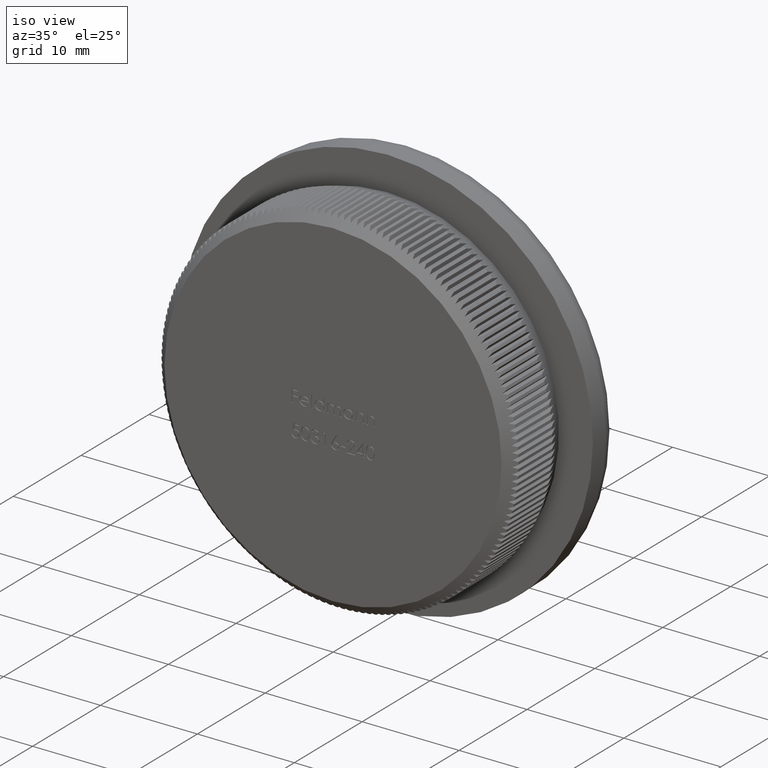
[diagram: clean part render]
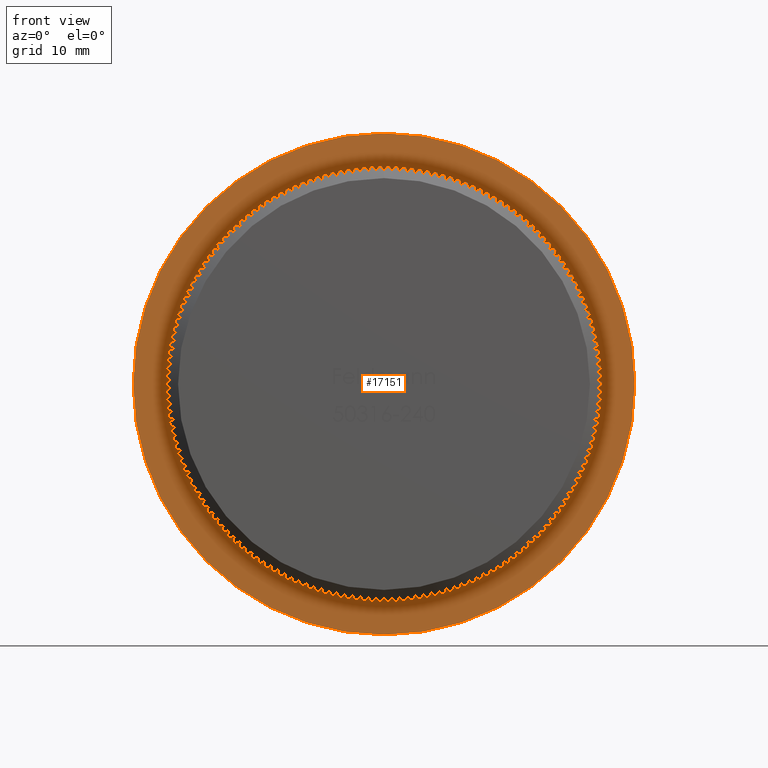
[diagram: tour spotlight — one face highlighted and labeled with its STEP entity id]
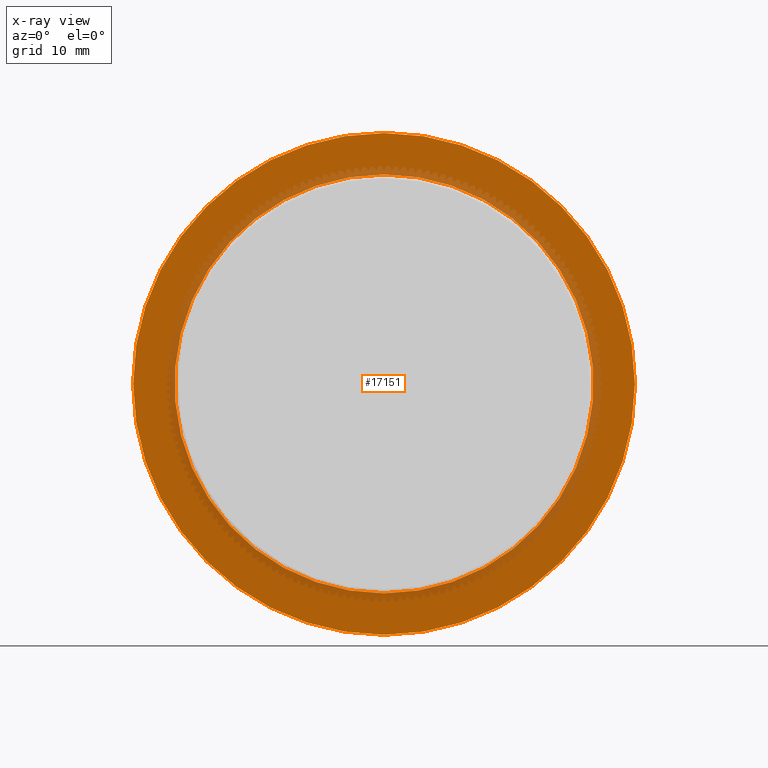
[diagram: x-ray of the same camera — body ghosted, this tour face saturated]
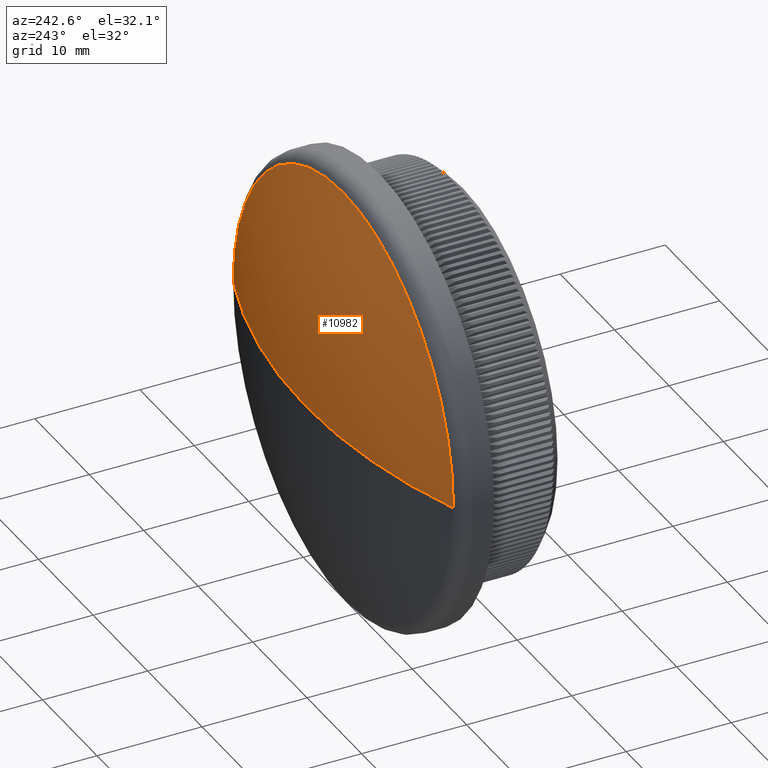
[diagram: tour spotlight — one face highlighted and labeled with its STEP entity id]
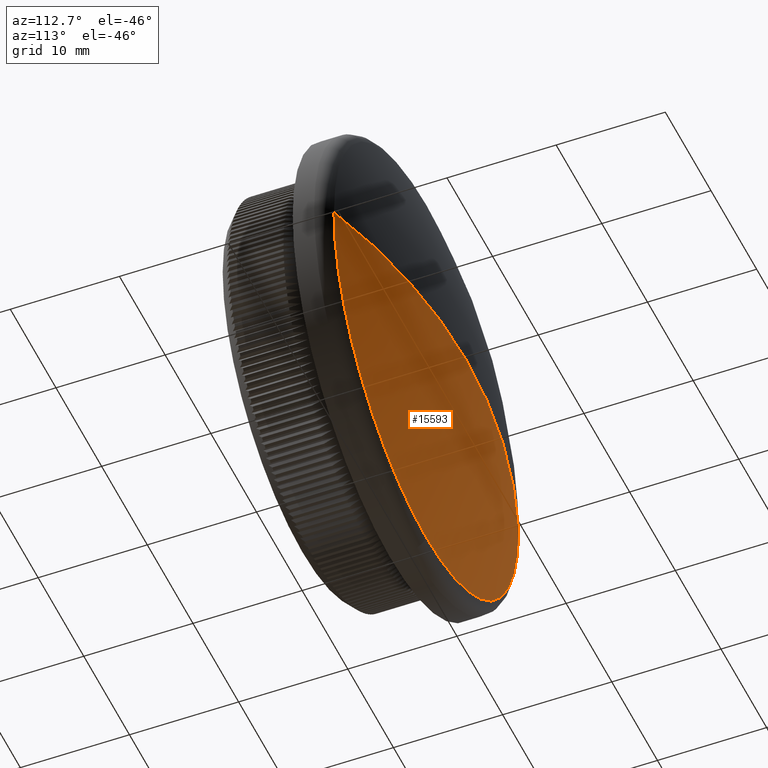
[diagram: tour spotlight — one face highlighted and labeled with its STEP entity id]
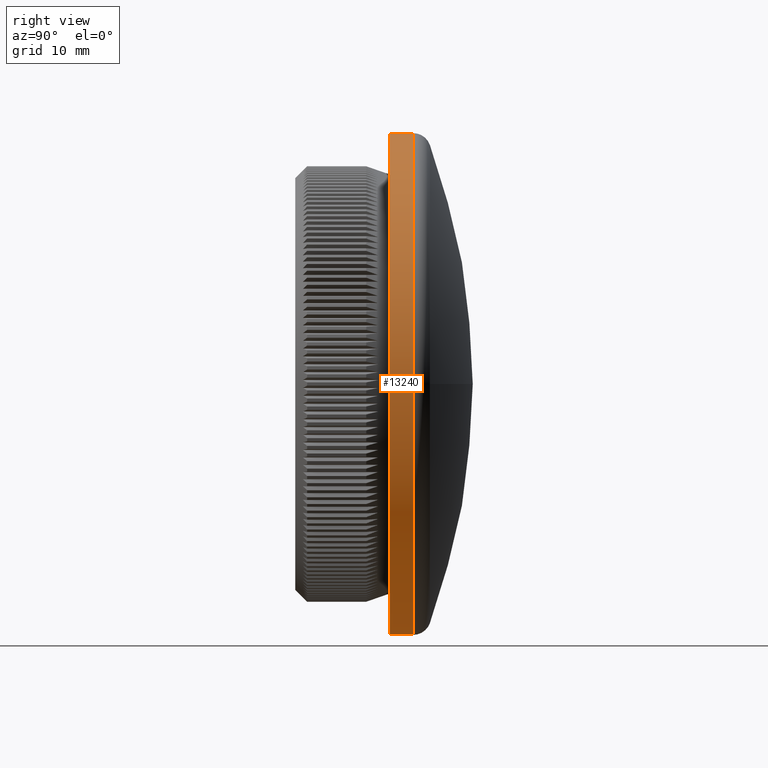
[diagram: tour spotlight — one face highlighted and labeled with its STEP entity id]
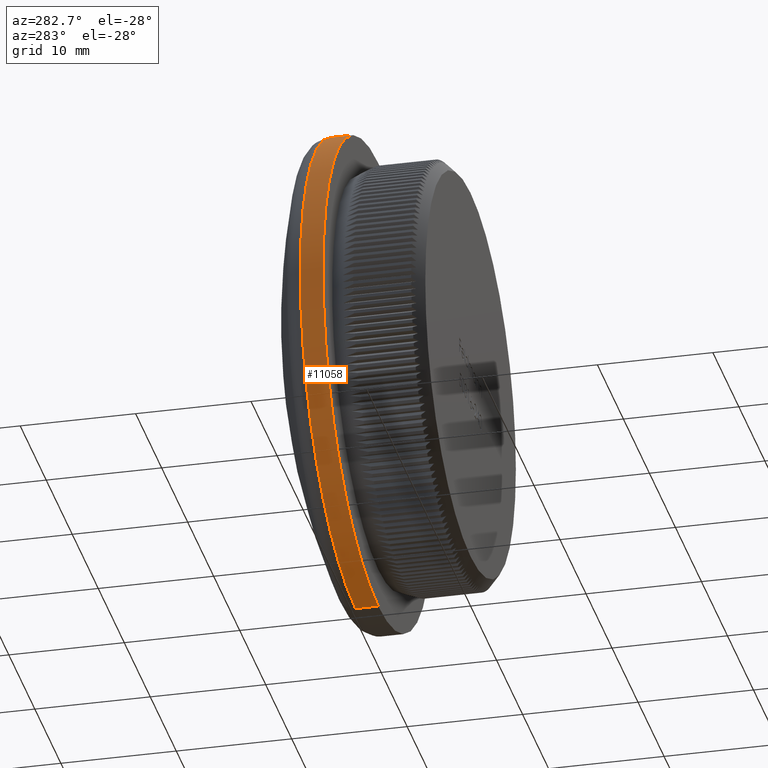
[diagram: tour spotlight — one face highlighted and labeled with its STEP entity id]
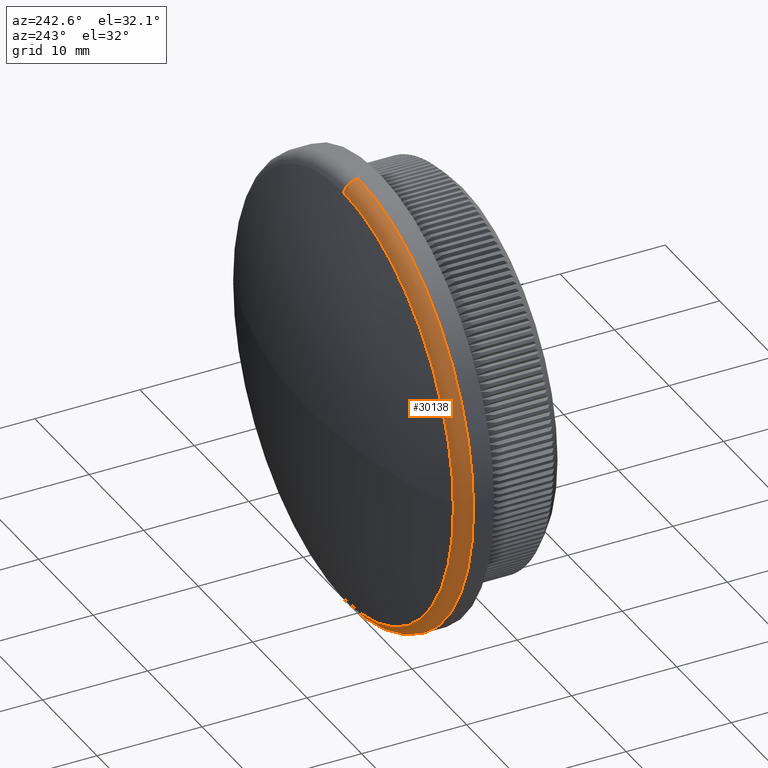
[diagram: tour spotlight — one face highlighted and labeled with its STEP entity id]
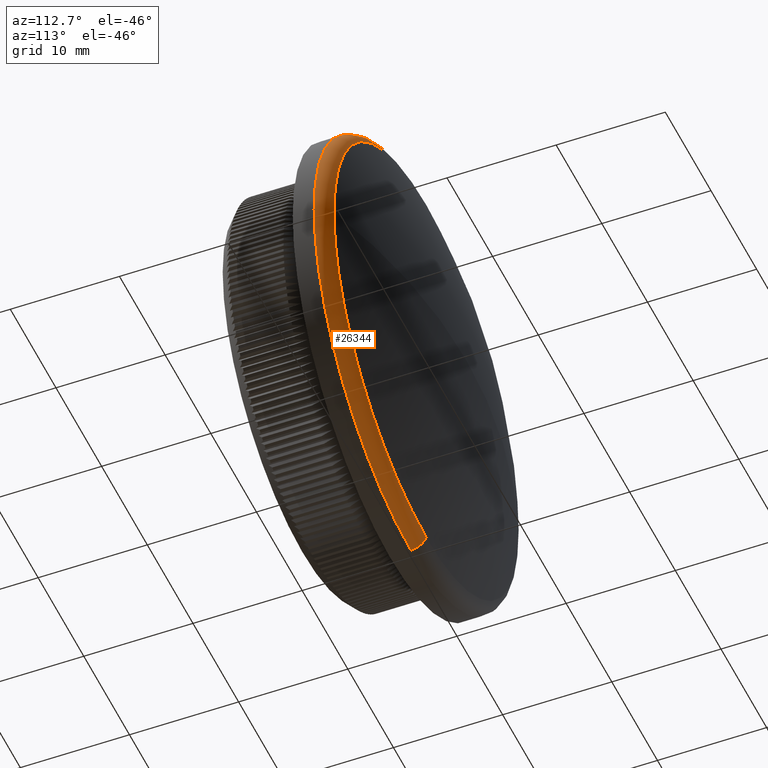
[diagram: tour spotlight — one face highlighted and labeled with its STEP entity id]
A machine part: a face-by-face anatomy tour. The part has 744 B-rep faces; the first image is the clean iso view, then the 7 largest visible faces are spotlighted one at a time (largest first), each with its STEP entity span.

Face 1 — front view, entity #17151. An x-ray twin of the same camera follows (body ghosted, this face saturated) — the face is partly hidden behind the body. In plain terms, the highlighted planar face has unit normal (0, -1, -0).
Definition (entity closure, byte-faithful):
#558 = CARTESIAN_POINT ( 'NONE',  ( 0.0000000000000000000, 8.000000000000000000, 0.0000000000000000000 ) ) ;
#905 = AXIS2_PLACEMENT_3D ( 'NONE', #12239, #9750, #3117 ) ;
#1106 = CARTESIAN_POINT ( 'NONE',  ( 0.0000000000000000000, 8.000000000000000000, 0.0000000000000000000 ) ) ;
#2089 = AXIS2_PLACEMENT_3D ( 'NONE', #558, #21553, #5031 ) ;
#2647 = DIRECTION ( 'NONE',  ( 0.0000000000000000000, -1.000000000000000000, -0.0000000000000000000 ) ) ;
#3117 = DIRECTION ( 'NONE',  ( 0.0000000000000000000, 0.0000000000000000000, -1.000000000000000000 ) ) ;
#3507 = CARTESIAN_POINT ( 'NONE',  ( 0.0000000000000000000, 8.000000000000000000, 0.0000000000000000000 ) ) ;
#4274 = EDGE_CURVE ( 'NONE', #9390, #13016, #30351, .T. ) ;
#4660 = CIRCLE ( 'NONE', #18461, 17.69999999999999900 ) ;
#5031 = DIRECTION ( 'NONE',  ( 0.0000000000000000000, 0.0000000000000000000, -1.000000000000000000 ) ) ;
#6095 = CARTESIAN_POINT ( 'NONE',  ( 0.0000000000000000000, 8.000000000000000000, -21.19999999999999900 ) ) ;
#7099 = EDGE_CURVE ( 'NONE', #13016, #9390, #7699, .T. ) ;
#7699 = CIRCLE ( 'NONE', #15462, 21.19999999999999900 ) ;
#7701 = CARTESIAN_POINT ( 'NONE',  ( 17.69999999999999900, 8.000000000000000000, 0.0000000000000000000 ) ) ;
#8264 = DIRECTION ( 'NONE',  ( 0.0000000000000000000, 0.0000000000000000000, -1.000000000000000000 ) ) ;
#8361 = DIRECTION ( 'NONE',  ( -0.0000000000000000000, -1.000000000000000000, -0.0000000000000000000 ) ) ;
#8468 = DIRECTION ( 'NONE',  ( -0.0000000000000000000, -1.000000000000000000, -0.0000000000000000000 ) ) ;
#9390 = VERTEX_POINT ( 'NONE', #28071 ) ;
#9750 = DIRECTION ( 'NONE',  ( -0.0000000000000000000, -1.000000000000000000, -0.0000000000000000000 ) ) ;
#12239 = CARTESIAN_POINT ( 'NONE',  ( 0.0000000000000000000, 8.000000000000000000, 0.0000000000000000000 ) ) ;
#12541 = CIRCLE ( 'NONE', #2089, 17.69999999999999900 ) ;
#13016 = VERTEX_POINT ( 'NONE', #6095 ) ;
#14466 = PLANE ( 'NONE',  #27305 ) ;
#14762 = ORIENTED_EDGE ( 'NONE', *, *, #21717, .F. ) ;
#15462 = AXIS2_PLACEMENT_3D ( 'NONE', #3507, #8361, #29297 ) ;
#16268 = EDGE_LOOP ( 'NONE', ( #18952, #25225 ) ) ;
#16997 = FACE_OUTER_BOUND ( 'NONE', #16268, .T. ) ;
#17151 = ADVANCED_FACE ( 'NONE', ( #16997, #25542 ), #14466, .T. ) ;
#17870 = ORIENTED_EDGE ( 'NONE', *, *, #27115, .F. ) ;
#18461 = AXIS2_PLACEMENT_3D ( 'NONE', #1106, #8468, #8264 ) ;
#18952 = ORIENTED_EDGE ( 'NONE', *, *, #7099, .T. ) ;
#21494 = CARTESIAN_POINT ( 'NONE',  ( 0.0000000000000000000, 8.000000000000000000, -17.69999999999999900 ) ) ;
#21553 = DIRECTION ( 'NONE',  ( -0.0000000000000000000, -1.000000000000000000, -0.0000000000000000000 ) ) ;
#21642 = DIRECTION ( 'NONE',  ( 0.0000000000000000000, 0.0000000000000000000, -1.000000000000000000 ) ) ;
#21717 = EDGE_CURVE ( 'NONE', #24457, #23365, #4660, .T. ) ;
#23365 = VERTEX_POINT ( 'NONE', #27165 ) ;
#24457 = VERTEX_POINT ( 'NONE', #21494 ) ;
#25225 = ORIENTED_EDGE ( 'NONE', *, *, #4274, .T. ) ;
#25542 = FACE_BOUND ( 'NONE', #30207, .T. ) ;
#27115 = EDGE_CURVE ( 'NONE', #23365, #24457, #12541, .T. ) ;
#27165 = CARTESIAN_POINT ( 'NONE',  ( 2.210487472460972900E-015, 8.000000000000000000, 17.69999999999999900 ) ) ;
#27305 = AXIS2_PLACEMENT_3D ( 'NONE', #7701, #2647, #21642 ) ;
#28071 = CARTESIAN_POINT ( 'NONE',  ( 2.596251214192388800E-015, 8.000000000000000000, 21.19999999999999900 ) ) ;
#29297 = DIRECTION ( 'NONE',  ( 0.0000000000000000000, 0.0000000000000000000, -1.000000000000000000 ) ) ;
#30207 = EDGE_LOOP ( 'NONE', ( #14762, #17870 ) ) ;
#30351 = CIRCLE ( 'NONE', #905, 21.19999999999999900 ) ;

Face 2 — auxiliary view, entity #10982. In plain terms, the highlighted spherical surface has radius 58.18 mm.
Definition (entity closure, byte-faithful):
#381 = AXIS2_PLACEMENT_3D ( 'NONE', #5385, #17196, #14945 ) ;
#948 = AXIS2_PLACEMENT_3D ( 'NONE', #9721, #21790, #7540 ) ;
#1131 = EDGE_LOOP ( 'NONE', ( #5878, #12476, #12214, #26637 ) ) ;
#1823 = AXIS2_PLACEMENT_3D ( 'NONE', #20010, #10534, #7856 ) ;
#3346 = CARTESIAN_POINT ( 'NONE',  ( -20.22134791813689200, 11.37281375303809700, 2.476400900239134100E-015 ) ) ;
#4391 = CIRCLE ( 'NONE', #20800, 20.22134791813691000 ) ;
#5343 = SPHERICAL_SURFACE ( 'NONE', #1823, 58.18000000000007100 ) ;
#5385 = CARTESIAN_POINT ( 'NONE',  ( 0.0000000000000000000, -43.18000000000007100, 0.0000000000000000000 ) ) ;
#5878 = ORIENTED_EDGE ( 'NONE', *, *, #8126, .F. ) ;
#7540 = DIRECTION ( 'NONE',  ( 1.000000000000000000, 0.0000000000000000000, -1.224646799147353500E-016 ) ) ;
#7856 = DIRECTION ( 'NONE',  ( 1.000000000000000000, 0.0000000000000000000, 0.0000000000000000000 ) ) ;
#8126 = EDGE_CURVE ( 'NONE', #27635, #29362, #18423, .T. ) ;
#8365 = DIRECTION ( 'NONE',  ( 0.0000000000000000000, 1.000000000000000000, 0.0000000000000000000 ) ) ;
#8401 = EDGE_CURVE ( 'NONE', #27635, #23409, #9874, .T. ) ;
#8773 = CARTESIAN_POINT ( 'NONE',  ( 0.0000000000000000000, 11.37281375303810000, 0.0000000000000000000 ) ) ;
#9721 = CARTESIAN_POINT ( 'NONE',  ( 0.0000000000000000000, -43.18000000000007100, 0.0000000000000000000 ) ) ;
#9874 = CIRCLE ( 'NONE', #948, 58.18000000000007100 ) ;
#10534 = DIRECTION ( 'NONE',  ( 0.0000000000000000000, 0.0000000000000000000, 1.000000000000000000 ) ) ;
#10982 = ADVANCED_FACE ( 'NONE', ( #24295 ), #5343, .T. ) ;
#12214 = ORIENTED_EDGE ( 'NONE', *, *, #24641, .T. ) ;
#12476 = ORIENTED_EDGE ( 'NONE', *, *, #8401, .T. ) ;
#12652 = CARTESIAN_POINT ( 'NONE',  ( 2.536326057215763400E-015, 11.37281375303810000, 20.22134791813691000 ) ) ;
#12666 = CARTESIAN_POINT ( 'NONE',  ( 0.0000000000000000000, 11.37281375303810000, 0.0000000000000000000 ) ) ;
#14504 = CIRCLE ( 'NONE', #14521, 20.22134791813691000 ) ;
#14521 = AXIS2_PLACEMENT_3D ( 'NONE', #8773, #8365, #20628 ) ;
#14548 = CARTESIAN_POINT ( 'NONE',  ( 3.562497538719655300E-015, 15.00000000000000000, 0.0000000000000000000 ) ) ;
#14945 = DIRECTION ( 'NONE',  ( -1.000000000000000000, 0.0000000000000000000, 0.0000000000000000000 ) ) ;
#17196 = DIRECTION ( 'NONE',  ( 0.0000000000000000000, 0.0000000000000000000, -1.000000000000000000 ) ) ;
#18423 = CIRCLE ( 'NONE', #381, 58.18000000000007100 ) ;
#18557 = EDGE_CURVE ( 'NONE', #19182, #29362, #4391, .T. ) ;
#19182 = VERTEX_POINT ( 'NONE', #12652 ) ;
#19940 = DIRECTION ( 'NONE',  ( 0.0000000000000000000, 1.000000000000000000, 0.0000000000000000000 ) ) ;
#20010 = CARTESIAN_POINT ( 'NONE',  ( 0.0000000000000000000, -43.18000000000007100, 0.0000000000000000000 ) ) ;
#20628 = DIRECTION ( 'NONE',  ( 0.0000000000000000000, 0.0000000000000000000, -1.000000000000000000 ) ) ;
#20800 = AXIS2_PLACEMENT_3D ( 'NONE', #12666, #19940, #26956 ) ;
#21790 = DIRECTION ( 'NONE',  ( 1.224646799147353200E-016, -0.0000000000000000000, 1.000000000000000000 ) ) ;
#23409 = VERTEX_POINT ( 'NONE', #3346 ) ;
#23647 = CARTESIAN_POINT ( 'NONE',  ( 20.22134791813689200, 11.37281375303809700, 0.0000000000000000000 ) ) ;
#24295 = FACE_OUTER_BOUND ( 'NONE', #1131, .T. ) ;
#24641 = EDGE_CURVE ( 'NONE', #23409, #19182, #14504, .T. ) ;
#26637 = ORIENTED_EDGE ( 'NONE', *, *, #18557, .T. ) ;
#26956 = DIRECTION ( 'NONE',  ( 0.0000000000000000000, 0.0000000000000000000, -1.000000000000000000 ) ) ;
#27635 = VERTEX_POINT ( 'NONE', #14548 ) ;
#29362 = VERTEX_POINT ( 'NONE', #23647 ) ;

Face 3 — auxiliary view, entity #15593. In plain terms, the highlighted spherical surface has radius 58.18 mm.
Definition (entity closure, byte-faithful):
#13 = CIRCLE ( 'NONE', #14709, 20.22134791813691000 ) ;
#381 = AXIS2_PLACEMENT_3D ( 'NONE', #5385, #17196, #14945 ) ;
#948 = AXIS2_PLACEMENT_3D ( 'NONE', #9721, #21790, #7540 ) ;
#3346 = CARTESIAN_POINT ( 'NONE',  ( -20.22134791813689200, 11.37281375303809700, 2.476400900239134100E-015 ) ) ;
#5070 = EDGE_LOOP ( 'NONE', ( #21856, #23463, #28868, #25662 ) ) ;
#5385 = CARTESIAN_POINT ( 'NONE',  ( 0.0000000000000000000, -43.18000000000007100, 0.0000000000000000000 ) ) ;
#7540 = DIRECTION ( 'NONE',  ( 1.000000000000000000, 0.0000000000000000000, -1.224646799147353500E-016 ) ) ;
#8126 = EDGE_CURVE ( 'NONE', #27635, #29362, #18423, .T. ) ;
#8401 = EDGE_CURVE ( 'NONE', #27635, #23409, #9874, .T. ) ;
#8756 = DIRECTION ( 'NONE',  ( 0.0000000000000000000, 1.000000000000000000, 0.0000000000000000000 ) ) ;
#9721 = CARTESIAN_POINT ( 'NONE',  ( 0.0000000000000000000, -43.18000000000007100, 0.0000000000000000000 ) ) ;
#9874 = CIRCLE ( 'NONE', #948, 58.18000000000007100 ) ;
#13482 = DIRECTION ( 'NONE',  ( 0.0000000000000000000, 1.000000000000000000, 0.0000000000000000000 ) ) ;
#14548 = CARTESIAN_POINT ( 'NONE',  ( 3.562497538719655300E-015, 15.00000000000000000, 0.0000000000000000000 ) ) ;
#14709 = AXIS2_PLACEMENT_3D ( 'NONE', #27682, #13482, #25619 ) ;
#14945 = DIRECTION ( 'NONE',  ( -1.000000000000000000, 0.0000000000000000000, 0.0000000000000000000 ) ) ;
#15593 = ADVANCED_FACE ( 'NONE', ( #25246 ), #18957, .T. ) ;
#15845 = CIRCLE ( 'NONE', #28530, 20.22134791813691000 ) ;
#17196 = DIRECTION ( 'NONE',  ( 0.0000000000000000000, 0.0000000000000000000, -1.000000000000000000 ) ) ;
#18423 = CIRCLE ( 'NONE', #381, 58.18000000000007100 ) ;
#18957 = SPHERICAL_SURFACE ( 'NONE', #20562, 58.18000000000007100 ) ;
#19785 = EDGE_CURVE ( 'NONE', #29362, #26987, #15845, .T. ) ;
#20562 = AXIS2_PLACEMENT_3D ( 'NONE', #30406, #27614, #25248 ) ;
#21790 = DIRECTION ( 'NONE',  ( 1.224646799147353200E-016, -0.0000000000000000000, 1.000000000000000000 ) ) ;
#21856 = ORIENTED_EDGE ( 'NONE', *, *, #8401, .F. ) ;
#23205 = CARTESIAN_POINT ( 'NONE',  ( 0.0000000000000000000, 11.37281375303810000, 0.0000000000000000000 ) ) ;
#23409 = VERTEX_POINT ( 'NONE', #3346 ) ;
#23463 = ORIENTED_EDGE ( 'NONE', *, *, #8126, .T. ) ;
#23647 = CARTESIAN_POINT ( 'NONE',  ( 20.22134791813689200, 11.37281375303809700, 0.0000000000000000000 ) ) ;
#24294 = EDGE_CURVE ( 'NONE', #26987, #23409, #13, .T. ) ;
#25246 = FACE_OUTER_BOUND ( 'NONE', #5070, .T. ) ;
#25248 = DIRECTION ( 'NONE',  ( 1.000000000000000000, 0.0000000000000000000, 0.0000000000000000000 ) ) ;
#25619 = DIRECTION ( 'NONE',  ( 0.0000000000000000000, 0.0000000000000000000, -1.000000000000000000 ) ) ;
#25662 = ORIENTED_EDGE ( 'NONE', *, *, #24294, .T. ) ;
#26987 = VERTEX_POINT ( 'NONE', #27845 ) ;
#27614 = DIRECTION ( 'NONE',  ( 0.0000000000000000000, 0.0000000000000000000, 1.000000000000000000 ) ) ;
#27635 = VERTEX_POINT ( 'NONE', #14548 ) ;
#27682 = CARTESIAN_POINT ( 'NONE',  ( 0.0000000000000000000, 11.37281375303810000, 0.0000000000000000000 ) ) ;
#27845 = CARTESIAN_POINT ( 'NONE',  ( 0.0000000000000000000, 11.37281375303810000, -20.22134791813691000 ) ) ;
#28530 = AXIS2_PLACEMENT_3D ( 'NONE', #23205, #8756, #30214 ) ;
#28868 = ORIENTED_EDGE ( 'NONE', *, *, #19785, .T. ) ;
#29362 = VERTEX_POINT ( 'NONE', #23647 ) ;
#30214 = DIRECTION ( 'NONE',  ( 0.0000000000000000000, 0.0000000000000000000, -1.000000000000000000 ) ) ;
#30406 = CARTESIAN_POINT ( 'NONE',  ( 0.0000000000000000000, -43.18000000000007100, 0.0000000000000000000 ) ) ;

Face 4 — right view, entity #13240. In plain terms, the highlighted cylindrical surface (partial cylindrical patch) has radius 21.2 mm, axis along (-0, -1, -0).
Definition (entity closure, byte-faithful):
#60 = DIRECTION ( 'NONE',  ( 0.0000000000000000000, 0.0000000000000000000, -1.000000000000000000 ) ) ;
#851 = CARTESIAN_POINT ( 'NONE',  ( 0.0000000000000000000, 9.966330070852492900, 0.0000000000000000000 ) ) ;
#910 = EDGE_LOOP ( 'NONE', ( #8336, #16144, #12702, #25488 ) ) ;
#1846 = LINE ( 'NONE', #23591, #9647 ) ;
#2057 = CARTESIAN_POINT ( 'NONE',  ( 2.596251214192389200E-015, 9.966330070852492900, 21.20000000000000300 ) ) ;
#2978 = EDGE_CURVE ( 'NONE', #16349, #13016, #1846, .T. ) ;
#3507 = CARTESIAN_POINT ( 'NONE',  ( 0.0000000000000000000, 8.000000000000000000, 0.0000000000000000000 ) ) ;
#4960 = EDGE_CURVE ( 'NONE', #16349, #19515, #13705, .T. ) ;
#6042 = DIRECTION ( 'NONE',  ( -0.0000000000000000000, -1.000000000000000000, -0.0000000000000000000 ) ) ;
#6095 = CARTESIAN_POINT ( 'NONE',  ( 0.0000000000000000000, 8.000000000000000000, -21.19999999999999900 ) ) ;
#6601 = AXIS2_PLACEMENT_3D ( 'NONE', #11888, #14291, #60 ) ;
#7099 = EDGE_CURVE ( 'NONE', #13016, #9390, #7699, .T. ) ;
#7225 = VECTOR ( 'NONE', #12324, 1000.000000000000000 ) ;
#7477 = AXIS2_PLACEMENT_3D ( 'NONE', #851, #6042, #8521 ) ;
#7699 = CIRCLE ( 'NONE', #15462, 21.19999999999999900 ) ;
#8336 = ORIENTED_EDGE ( 'NONE', *, *, #4960, .T. ) ;
#8361 = DIRECTION ( 'NONE',  ( -0.0000000000000000000, -1.000000000000000000, -0.0000000000000000000 ) ) ;
#8521 = DIRECTION ( 'NONE',  ( 0.0000000000000000000, 0.0000000000000000000, -1.000000000000000000 ) ) ;
#9390 = VERTEX_POINT ( 'NONE', #28071 ) ;
#9647 = VECTOR ( 'NONE', #16111, 1000.000000000000000 ) ;
#10806 = EDGE_CURVE ( 'NONE', #19515, #9390, #14649, .T. ) ;
#11888 = CARTESIAN_POINT ( 'NONE',  ( 0.0000000000000000000, 0.0000000000000000000, 0.0000000000000000000 ) ) ;
#12324 = DIRECTION ( 'NONE',  ( -0.0000000000000000000, -1.000000000000000000, -0.0000000000000000000 ) ) ;
#12702 = ORIENTED_EDGE ( 'NONE', *, *, #7099, .F. ) ;
#13016 = VERTEX_POINT ( 'NONE', #6095 ) ;
#13240 = ADVANCED_FACE ( 'NONE', ( #23106 ), #29363, .T. ) ;
#13705 = CIRCLE ( 'NONE', #7477, 21.20000000000000300 ) ;
#14291 = DIRECTION ( 'NONE',  ( -0.0000000000000000000, -1.000000000000000000, -0.0000000000000000000 ) ) ;
#14649 = LINE ( 'NONE', #16985, #7225 ) ;
#15462 = AXIS2_PLACEMENT_3D ( 'NONE', #3507, #8361, #29297 ) ;
#16111 = DIRECTION ( 'NONE',  ( -0.0000000000000000000, -1.000000000000000000, -0.0000000000000000000 ) ) ;
#16144 = ORIENTED_EDGE ( 'NONE', *, *, #10806, .T. ) ;
#16349 = VERTEX_POINT ( 'NONE', #20604 ) ;
#16985 = CARTESIAN_POINT ( 'NONE',  ( 2.596251214192389200E-015, 0.0000000000000000000, 21.20000000000000300 ) ) ;
#19515 = VERTEX_POINT ( 'NONE', #2057 ) ;
#20604 = CARTESIAN_POINT ( 'NONE',  ( 0.0000000000000000000, 9.966330070852492900, -21.20000000000000300 ) ) ;
#23106 = FACE_OUTER_BOUND ( 'NONE', #910, .T. ) ;
#23591 = CARTESIAN_POINT ( 'NONE',  ( 0.0000000000000000000, 0.0000000000000000000, -21.20000000000000300 ) ) ;
#25488 = ORIENTED_EDGE ( 'NONE', *, *, #2978, .F. ) ;
#28071 = CARTESIAN_POINT ( 'NONE',  ( 2.596251214192388800E-015, 8.000000000000000000, 21.19999999999999900 ) ) ;
#29297 = DIRECTION ( 'NONE',  ( 0.0000000000000000000, 0.0000000000000000000, -1.000000000000000000 ) ) ;
#29363 = CYLINDRICAL_SURFACE ( 'NONE', #6601, 21.20000000000000300 ) ;

Face 5 — auxiliary view, entity #11058. In plain terms, the highlighted cylindrical surface (partial cylindrical patch) has radius 21.2 mm, axis along (-0, -1, -0).
Definition (entity closure, byte-faithful):
#178 = ORIENTED_EDGE ( 'NONE', *, *, #30149, .T. ) ;
#810 = AXIS2_PLACEMENT_3D ( 'NONE', #3503, #20112, #13031 ) ;
#905 = AXIS2_PLACEMENT_3D ( 'NONE', #12239, #9750, #3117 ) ;
#1846 = LINE ( 'NONE', #23591, #9647 ) ;
#2057 = CARTESIAN_POINT ( 'NONE',  ( 2.596251214192389200E-015, 9.966330070852492900, 21.20000000000000300 ) ) ;
#2978 = EDGE_CURVE ( 'NONE', #16349, #13016, #1846, .T. ) ;
#3117 = DIRECTION ( 'NONE',  ( 0.0000000000000000000, 0.0000000000000000000, -1.000000000000000000 ) ) ;
#3503 = CARTESIAN_POINT ( 'NONE',  ( 0.0000000000000000000, 0.0000000000000000000, 0.0000000000000000000 ) ) ;
#4274 = EDGE_CURVE ( 'NONE', #9390, #13016, #30351, .T. ) ;
#6095 = CARTESIAN_POINT ( 'NONE',  ( 0.0000000000000000000, 8.000000000000000000, -21.19999999999999900 ) ) ;
#7225 = VECTOR ( 'NONE', #12324, 1000.000000000000000 ) ;
#9390 = VERTEX_POINT ( 'NONE', #28071 ) ;
#9647 = VECTOR ( 'NONE', #16111, 1000.000000000000000 ) ;
#9750 = DIRECTION ( 'NONE',  ( -0.0000000000000000000, -1.000000000000000000, -0.0000000000000000000 ) ) ;
#10539 = CYLINDRICAL_SURFACE ( 'NONE', #810, 21.20000000000000300 ) ;
#10806 = EDGE_CURVE ( 'NONE', #19515, #9390, #14649, .T. ) ;
#11058 = ADVANCED_FACE ( 'NONE', ( #17589 ), #10539, .T. ) ;
#12239 = CARTESIAN_POINT ( 'NONE',  ( 0.0000000000000000000, 8.000000000000000000, 0.0000000000000000000 ) ) ;
#12324 = DIRECTION ( 'NONE',  ( -0.0000000000000000000, -1.000000000000000000, -0.0000000000000000000 ) ) ;
#12751 = DIRECTION ( 'NONE',  ( -0.0000000000000000000, -1.000000000000000000, -0.0000000000000000000 ) ) ;
#12850 = CARTESIAN_POINT ( 'NONE',  ( 0.0000000000000000000, 9.966330070852492900, 0.0000000000000000000 ) ) ;
#13016 = VERTEX_POINT ( 'NONE', #6095 ) ;
#13031 = DIRECTION ( 'NONE',  ( 0.0000000000000000000, 0.0000000000000000000, -1.000000000000000000 ) ) ;
#14272 = AXIS2_PLACEMENT_3D ( 'NONE', #12850, #12751, #22641 ) ;
#14649 = LINE ( 'NONE', #16985, #7225 ) ;
#16111 = DIRECTION ( 'NONE',  ( -0.0000000000000000000, -1.000000000000000000, -0.0000000000000000000 ) ) ;
#16349 = VERTEX_POINT ( 'NONE', #20604 ) ;
#16760 = ORIENTED_EDGE ( 'NONE', *, *, #10806, .F. ) ;
#16880 = ORIENTED_EDGE ( 'NONE', *, *, #2978, .T. ) ;
#16985 = CARTESIAN_POINT ( 'NONE',  ( 2.596251214192389200E-015, 0.0000000000000000000, 21.20000000000000300 ) ) ;
#17589 = FACE_OUTER_BOUND ( 'NONE', #17855, .T. ) ;
#17855 = EDGE_LOOP ( 'NONE', ( #16760, #178, #16880, #29901 ) ) ;
#19515 = VERTEX_POINT ( 'NONE', #2057 ) ;
#20112 = DIRECTION ( 'NONE',  ( -0.0000000000000000000, -1.000000000000000000, -0.0000000000000000000 ) ) ;
#20233 = CIRCLE ( 'NONE', #14272, 21.20000000000000300 ) ;
#20604 = CARTESIAN_POINT ( 'NONE',  ( 0.0000000000000000000, 9.966330070852492900, -21.20000000000000300 ) ) ;
#22641 = DIRECTION ( 'NONE',  ( 0.0000000000000000000, 0.0000000000000000000, -1.000000000000000000 ) ) ;
#23591 = CARTESIAN_POINT ( 'NONE',  ( 0.0000000000000000000, 0.0000000000000000000, -21.20000000000000300 ) ) ;
#28071 = CARTESIAN_POINT ( 'NONE',  ( 2.596251214192388800E-015, 8.000000000000000000, 21.19999999999999900 ) ) ;
#29901 = ORIENTED_EDGE ( 'NONE', *, *, #4274, .F. ) ;
#30149 = EDGE_CURVE ( 'NONE', #19515, #16349, #20233, .T. ) ;
#30351 = CIRCLE ( 'NONE', #905, 21.19999999999999900 ) ;

Face 6 — auxiliary view, entity #30138. In plain terms, the highlighted toroidal blend (fillet) surface has major radius 19.7 mm and minor (blend) radius 1.5 mm.
Definition (entity closure, byte-faithful):
#13 = CIRCLE ( 'NONE', #14709, 20.22134791813691000 ) ;
#729 = AXIS2_PLACEMENT_3D ( 'NONE', #18421, #23203, #16121 ) ;
#2057 = CARTESIAN_POINT ( 'NONE',  ( 2.596251214192389200E-015, 9.966330070852492900, 21.20000000000000300 ) ) ;
#2679 = ORIENTED_EDGE ( 'NONE', *, *, #20550, .T. ) ;
#3346 = CARTESIAN_POINT ( 'NONE',  ( -20.22134791813689200, 11.37281375303809700, 2.476400900239134100E-015 ) ) ;
#3356 = ORIENTED_EDGE ( 'NONE', *, *, #24294, .F. ) ;
#3735 = AXIS2_PLACEMENT_3D ( 'NONE', #18883, #16786, #9439 ) ;
#6832 = EDGE_CURVE ( 'NONE', #19182, #19515, #17710, .T. ) ;
#7979 = DIRECTION ( 'NONE',  ( -0.0000000000000000000, -1.000000000000000000, -0.0000000000000000000 ) ) ;
#8365 = DIRECTION ( 'NONE',  ( 0.0000000000000000000, 1.000000000000000000, 0.0000000000000000000 ) ) ;
#8773 = CARTESIAN_POINT ( 'NONE',  ( 0.0000000000000000000, 11.37281375303810000, 0.0000000000000000000 ) ) ;
#9439 = DIRECTION ( 'NONE',  ( -1.224646799147352000E-016, 0.0000000000000000000, -1.000000000000000000 ) ) ;
#12652 = CARTESIAN_POINT ( 'NONE',  ( 2.536326057215763400E-015, 11.37281375303810000, 20.22134791813691000 ) ) ;
#12717 = ORIENTED_EDGE ( 'NONE', *, *, #30149, .F. ) ;
#12751 = DIRECTION ( 'NONE',  ( -0.0000000000000000000, -1.000000000000000000, -0.0000000000000000000 ) ) ;
#12850 = CARTESIAN_POINT ( 'NONE',  ( 0.0000000000000000000, 9.966330070852492900, 0.0000000000000000000 ) ) ;
#13482 = DIRECTION ( 'NONE',  ( 0.0000000000000000000, 1.000000000000000000, 0.0000000000000000000 ) ) ;
#14272 = AXIS2_PLACEMENT_3D ( 'NONE', #12850, #12751, #22641 ) ;
#14504 = CIRCLE ( 'NONE', #14521, 20.22134791813691000 ) ;
#14521 = AXIS2_PLACEMENT_3D ( 'NONE', #8773, #8365, #20628 ) ;
#14709 = AXIS2_PLACEMENT_3D ( 'NONE', #27682, #13482, #25619 ) ;
#15451 = DIRECTION ( 'NONE',  ( 0.0000000000000000000, 0.0000000000000000000, -1.000000000000000000 ) ) ;
#15751 = TOROIDAL_SURFACE ( 'NONE', #23824, 19.70000000000000300, 1.500000000000000000 ) ;
#16121 = DIRECTION ( 'NONE',  ( 0.0000000000000000000, 0.0000000000000000000, 1.000000000000000000 ) ) ;
#16288 = ORIENTED_EDGE ( 'NONE', *, *, #6832, .F. ) ;
#16349 = VERTEX_POINT ( 'NONE', #20604 ) ;
#16786 = DIRECTION ( 'NONE',  ( 1.000000000000000000, 0.0000000000000000000, -1.224646799147353500E-016 ) ) ;
#17710 = CIRCLE ( 'NONE', #3735, 1.500000000000001300 ) ;
#17712 = CARTESIAN_POINT ( 'NONE',  ( 0.0000000000000000000, 9.966330070852492900, 0.0000000000000000000 ) ) ;
#18421 = CARTESIAN_POINT ( 'NONE',  ( 0.0000000000000000000, 9.966330070852492900, -19.70000000000000300 ) ) ;
#18883 = CARTESIAN_POINT ( 'NONE',  ( 2.412554194320286400E-015, 9.966330070852492900, 19.70000000000000300 ) ) ;
#19182 = VERTEX_POINT ( 'NONE', #12652 ) ;
#19515 = VERTEX_POINT ( 'NONE', #2057 ) ;
#20233 = CIRCLE ( 'NONE', #14272, 21.20000000000000300 ) ;
#20550 = EDGE_CURVE ( 'NONE', #26987, #16349, #25841, .T. ) ;
#20604 = CARTESIAN_POINT ( 'NONE',  ( 0.0000000000000000000, 9.966330070852492900, -21.20000000000000300 ) ) ;
#20628 = DIRECTION ( 'NONE',  ( 0.0000000000000000000, 0.0000000000000000000, -1.000000000000000000 ) ) ;
#21749 = FACE_OUTER_BOUND ( 'NONE', #27647, .T. ) ;
#22641 = DIRECTION ( 'NONE',  ( 0.0000000000000000000, 0.0000000000000000000, -1.000000000000000000 ) ) ;
#23203 = DIRECTION ( 'NONE',  ( -1.000000000000000000, 0.0000000000000000000, 0.0000000000000000000 ) ) ;
#23409 = VERTEX_POINT ( 'NONE', #3346 ) ;
#23824 = AXIS2_PLACEMENT_3D ( 'NONE', #17712, #7979, #15451 ) ;
#24294 = EDGE_CURVE ( 'NONE', #26987, #23409, #13, .T. ) ;
#24641 = EDGE_CURVE ( 'NONE', #23409, #19182, #14504, .T. ) ;
#25619 = DIRECTION ( 'NONE',  ( 0.0000000000000000000, 0.0000000000000000000, -1.000000000000000000 ) ) ;
#25841 = CIRCLE ( 'NONE', #729, 1.500000000000001300 ) ;
#26142 = ORIENTED_EDGE ( 'NONE', *, *, #24641, .F. ) ;
#26987 = VERTEX_POINT ( 'NONE', #27845 ) ;
#27647 = EDGE_LOOP ( 'NONE', ( #16288, #26142, #3356, #2679, #12717 ) ) ;
#27682 = CARTESIAN_POINT ( 'NONE',  ( 0.0000000000000000000, 11.37281375303810000, 0.0000000000000000000 ) ) ;
#27845 = CARTESIAN_POINT ( 'NONE',  ( 0.0000000000000000000, 11.37281375303810000, -20.22134791813691000 ) ) ;
#30138 = ADVANCED_FACE ( 'NONE', ( #21749 ), #15751, .T. ) ;
#30149 = EDGE_CURVE ( 'NONE', #19515, #16349, #20233, .T. ) ;

Face 7 — auxiliary view, entity #26344. In plain terms, the highlighted toroidal blend (fillet) surface has major radius 19.7 mm and minor (blend) radius 1.5 mm.
Definition (entity closure, byte-faithful):
#729 = AXIS2_PLACEMENT_3D ( 'NONE', #18421, #23203, #16121 ) ;
#851 = CARTESIAN_POINT ( 'NONE',  ( 0.0000000000000000000, 9.966330070852492900, 0.0000000000000000000 ) ) ;
#2057 = CARTESIAN_POINT ( 'NONE',  ( 2.596251214192389200E-015, 9.966330070852492900, 21.20000000000000300 ) ) ;
#3735 = AXIS2_PLACEMENT_3D ( 'NONE', #18883, #16786, #9439 ) ;
#3908 = EDGE_LOOP ( 'NONE', ( #21207, #7672, #6127, #21561, #6775 ) ) ;
#4391 = CIRCLE ( 'NONE', #20800, 20.22134791813691000 ) ;
#4960 = EDGE_CURVE ( 'NONE', #16349, #19515, #13705, .T. ) ;
#6042 = DIRECTION ( 'NONE',  ( -0.0000000000000000000, -1.000000000000000000, -0.0000000000000000000 ) ) ;
#6127 = ORIENTED_EDGE ( 'NONE', *, *, #4960, .F. ) ;
#6775 = ORIENTED_EDGE ( 'NONE', *, *, #19785, .F. ) ;
#6832 = EDGE_CURVE ( 'NONE', #19182, #19515, #17710, .T. ) ;
#7477 = AXIS2_PLACEMENT_3D ( 'NONE', #851, #6042, #8521 ) ;
#7672 = ORIENTED_EDGE ( 'NONE', *, *, #6832, .T. ) ;
#8521 = DIRECTION ( 'NONE',  ( 0.0000000000000000000, 0.0000000000000000000, -1.000000000000000000 ) ) ;
#8756 = DIRECTION ( 'NONE',  ( 0.0000000000000000000, 1.000000000000000000, 0.0000000000000000000 ) ) ;
#9439 = DIRECTION ( 'NONE',  ( -1.224646799147352000E-016, 0.0000000000000000000, -1.000000000000000000 ) ) ;
#11820 = TOROIDAL_SURFACE ( 'NONE', #23370, 19.70000000000000300, 1.500000000000000000 ) ;
#12652 = CARTESIAN_POINT ( 'NONE',  ( 2.536326057215763400E-015, 11.37281375303810000, 20.22134791813691000 ) ) ;
#12666 = CARTESIAN_POINT ( 'NONE',  ( 0.0000000000000000000, 11.37281375303810000, 0.0000000000000000000 ) ) ;
#13705 = CIRCLE ( 'NONE', #7477, 21.20000000000000300 ) ;
#15845 = CIRCLE ( 'NONE', #28530, 20.22134791813691000 ) ;
#16121 = DIRECTION ( 'NONE',  ( 0.0000000000000000000, 0.0000000000000000000, 1.000000000000000000 ) ) ;
#16349 = VERTEX_POINT ( 'NONE', #20604 ) ;
#16786 = DIRECTION ( 'NONE',  ( 1.000000000000000000, 0.0000000000000000000, -1.224646799147353500E-016 ) ) ;
#16921 = DIRECTION ( 'NONE',  ( -0.0000000000000000000, -1.000000000000000000, -0.0000000000000000000 ) ) ;
#17309 = DIRECTION ( 'NONE',  ( 0.0000000000000000000, 0.0000000000000000000, -1.000000000000000000 ) ) ;
#17710 = CIRCLE ( 'NONE', #3735, 1.500000000000001300 ) ;
#18421 = CARTESIAN_POINT ( 'NONE',  ( 0.0000000000000000000, 9.966330070852492900, -19.70000000000000300 ) ) ;
#18557 = EDGE_CURVE ( 'NONE', #19182, #29362, #4391, .T. ) ;
#18883 = CARTESIAN_POINT ( 'NONE',  ( 2.412554194320286400E-015, 9.966330070852492900, 19.70000000000000300 ) ) ;
#19182 = VERTEX_POINT ( 'NONE', #12652 ) ;
#19515 = VERTEX_POINT ( 'NONE', #2057 ) ;
#19785 = EDGE_CURVE ( 'NONE', #29362, #26987, #15845, .T. ) ;
#19940 = DIRECTION ( 'NONE',  ( 0.0000000000000000000, 1.000000000000000000, 0.0000000000000000000 ) ) ;
#20550 = EDGE_CURVE ( 'NONE', #26987, #16349, #25841, .T. ) ;
#20604 = CARTESIAN_POINT ( 'NONE',  ( 0.0000000000000000000, 9.966330070852492900, -21.20000000000000300 ) ) ;
#20800 = AXIS2_PLACEMENT_3D ( 'NONE', #12666, #19940, #26956 ) ;
#21207 = ORIENTED_EDGE ( 'NONE', *, *, #18557, .F. ) ;
#21561 = ORIENTED_EDGE ( 'NONE', *, *, #20550, .F. ) ;
#23203 = DIRECTION ( 'NONE',  ( -1.000000000000000000, 0.0000000000000000000, 0.0000000000000000000 ) ) ;
#23205 = CARTESIAN_POINT ( 'NONE',  ( 0.0000000000000000000, 11.37281375303810000, 0.0000000000000000000 ) ) ;
#23370 = AXIS2_PLACEMENT_3D ( 'NONE', #24399, #16921, #17309 ) ;
#23647 = CARTESIAN_POINT ( 'NONE',  ( 20.22134791813689200, 11.37281375303809700, 0.0000000000000000000 ) ) ;
#24399 = CARTESIAN_POINT ( 'NONE',  ( 0.0000000000000000000, 9.966330070852492900, 0.0000000000000000000 ) ) ;
#25841 = CIRCLE ( 'NONE', #729, 1.500000000000001300 ) ;
#26344 = ADVANCED_FACE ( 'NONE', ( #29595 ), #11820, .T. ) ;
#26956 = DIRECTION ( 'NONE',  ( 0.0000000000000000000, 0.0000000000000000000, -1.000000000000000000 ) ) ;
#26987 = VERTEX_POINT ( 'NONE', #27845 ) ;
#27845 = CARTESIAN_POINT ( 'NONE',  ( 0.0000000000000000000, 11.37281375303810000, -20.22134791813691000 ) ) ;
#28530 = AXIS2_PLACEMENT_3D ( 'NONE', #23205, #8756, #30214 ) ;
#29362 = VERTEX_POINT ( 'NONE', #23647 ) ;
#29595 = FACE_OUTER_BOUND ( 'NONE', #3908, .T. ) ;
#30214 = DIRECTION ( 'NONE',  ( 0.0000000000000000000, 0.0000000000000000000, -1.000000000000000000 ) ) ;